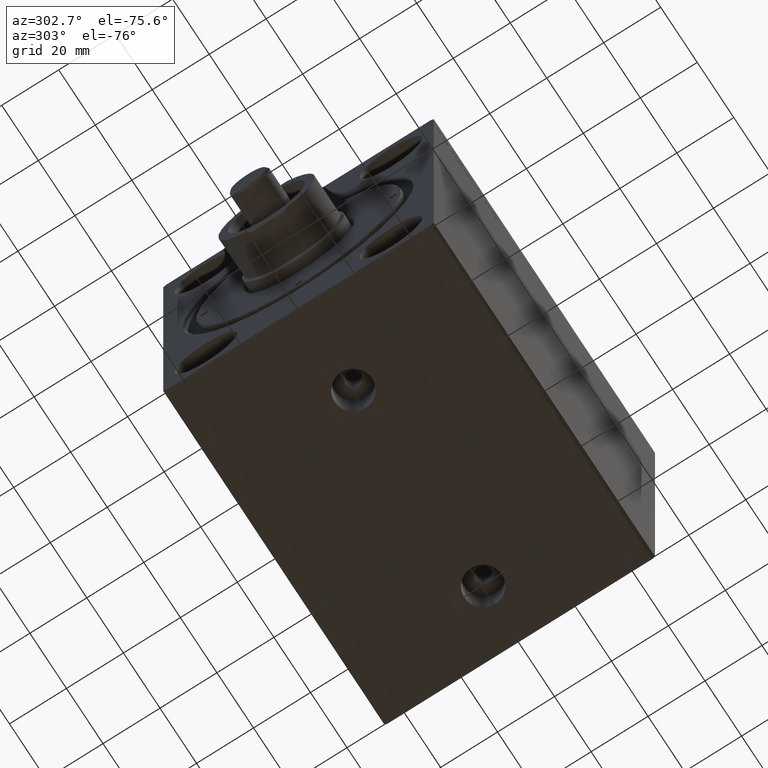
[diagram: clean part render]
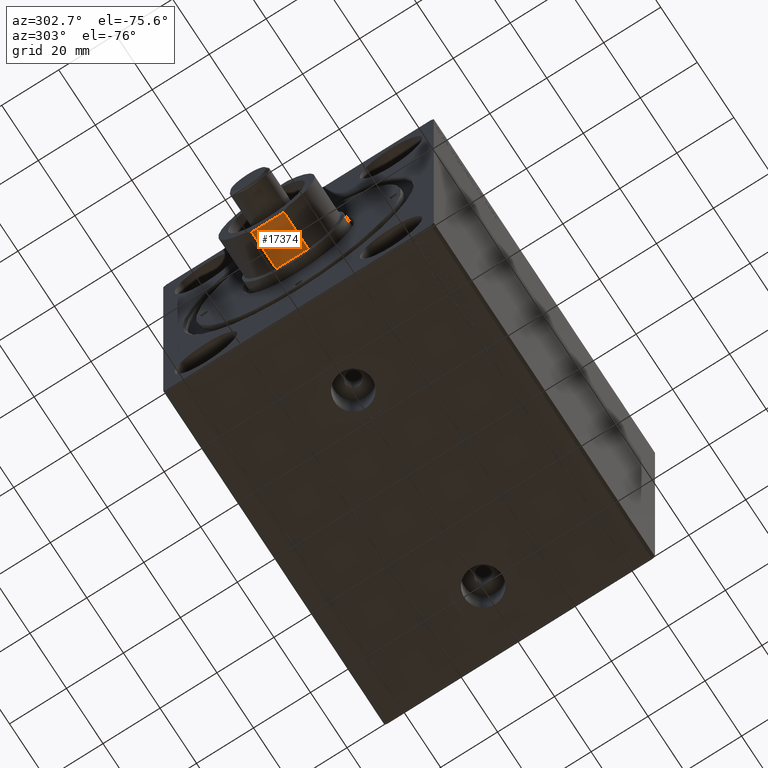
[diagram: same view with one face highlighted and labeled with its STEP entity id]
A machine part, auxiliary view. The second image highlights one B-rep face of the part: STEP entity #17374.
In plain terms, the highlighted planar face has unit normal (0, 0, 1).
Its self-contained STEP definition (entity closure, byte-faithful):
#823 = DIRECTION ( 'NONE',  ( 0.000000000000000000, 1.000000000000000000, 2.023432546540812942E-16 ) ) ;
#1076 = AXIS2_PLACEMENT_3D ( 'NONE', #17644, #37892, #21015 ) ;
#2553 = EDGE_CURVE ( 'NONE', #5861, #16239, #14549, .T. ) ;
#5618 = CARTESIAN_POINT ( 'NONE',  ( -16.00000000000000000, 5.625086665999005753, 81.78999999999996362 ) ) ;
#5766 = ORIENTED_EDGE ( 'NONE', *, *, #11079, .T. ) ;
#5861 = VERTEX_POINT ( 'NONE', #27165 ) ;
#8561 = VECTOR ( 'NONE', #23977, 1000.000000000000000 ) ;
#10243 = PLANE ( 'NONE',  #1076 ) ;
#10740 = ORIENTED_EDGE ( 'NONE', *, *, #35859, .F. ) ;
#10881 = CARTESIAN_POINT ( 'NONE',  ( -16.00000000000000000, -5.625086665999038615, 82.50000000000000000 ) ) ;
#11079 = EDGE_CURVE ( 'NONE', #30867, #37200, #25163, .T. ) ;
#13568 = CARTESIAN_POINT ( 'NONE',  ( -16.00000000000000000, 5.625086665999008417, 68.50000000000000000 ) ) ;
#14321 = LINE ( 'NONE', #27131, #8561 ) ;
#14549 = LINE ( 'NONE', #21952, #25876 ) ;
#14612 = CARTESIAN_POINT ( 'NONE',  ( -16.00000000000000000, -57.82732917920383642, 68.50000000000000000 ) ) ;
#14709 = LINE ( 'NONE', #10881, #15719 ) ;
#15719 = VECTOR ( 'NONE', #28409, 1000.000000000000000 ) ;
#16239 = VERTEX_POINT ( 'NONE', #5618 ) ;
#16984 = FACE_OUTER_BOUND ( 'NONE', #41787, .T. ) ;
#17374 = ADVANCED_FACE ( 'NONE', ( #16984 ), #10243, .F. ) ;
#17644 = CARTESIAN_POINT ( 'NONE',  ( -16.00000000000000000, -57.82732917920383642, -55.24166638606408952 ) ) ;
#21015 = DIRECTION ( 'NONE',  ( 0.000000000000000000, 0.000000000000000000, -1.000000000000000000 ) ) ;
#21952 = CARTESIAN_POINT ( 'NONE',  ( -16.00000000000000000, -57.82732917920386484, 81.78999999999997783 ) ) ;
#23977 = DIRECTION ( 'NONE',  ( -0.000000000000000000, -2.023432546540812942E-16, 1.000000000000000000 ) ) ;
#24084 = ORIENTED_EDGE ( 'NONE', *, *, #2553, .T. ) ;
#25163 = LINE ( 'NONE', #14612, #32516 ) ;
#25876 = VECTOR ( 'NONE', #823, 1000.000000000000000 ) ;
#27131 = CARTESIAN_POINT ( 'NONE',  ( -16.00000000000000000, 5.625086665999005753, 82.50000000000000000 ) ) ;
#27165 = CARTESIAN_POINT ( 'NONE',  ( -16.00000000000000000, -5.625086665999038615, 81.78999999999996362 ) ) ;
#28409 = DIRECTION ( 'NONE',  ( 0.000000000000000000, 2.023432546540812942E-16, -1.000000000000000000 ) ) ;
#30867 = VERTEX_POINT ( 'NONE', #13568 ) ;
#32516 = VECTOR ( 'NONE', #42935, 1000.000000000000000 ) ;
#35859 = EDGE_CURVE ( 'NONE', #30867, #16239, #14321, .T. ) ;
#36074 = CARTESIAN_POINT ( 'NONE',  ( -16.00000000000000000, -5.625086665999035951, 68.50000000000000000 ) ) ;
#36422 = EDGE_CURVE ( 'NONE', #5861, #37200, #14709, .T. ) ;
#36634 = ORIENTED_EDGE ( 'NONE', *, *, #36422, .F. ) ;
#37200 = VERTEX_POINT ( 'NONE', #36074 ) ;
#37892 = DIRECTION ( 'NONE',  ( 1.000000000000000000, -0.000000000000000000, 0.000000000000000000 ) ) ;
#41787 = EDGE_LOOP ( 'NONE', ( #36634, #24084, #10740, #5766 ) ) ;
#42935 = DIRECTION ( 'NONE',  ( -0.000000000000000000, -1.000000000000000000, 0.000000000000000000 ) ) ;